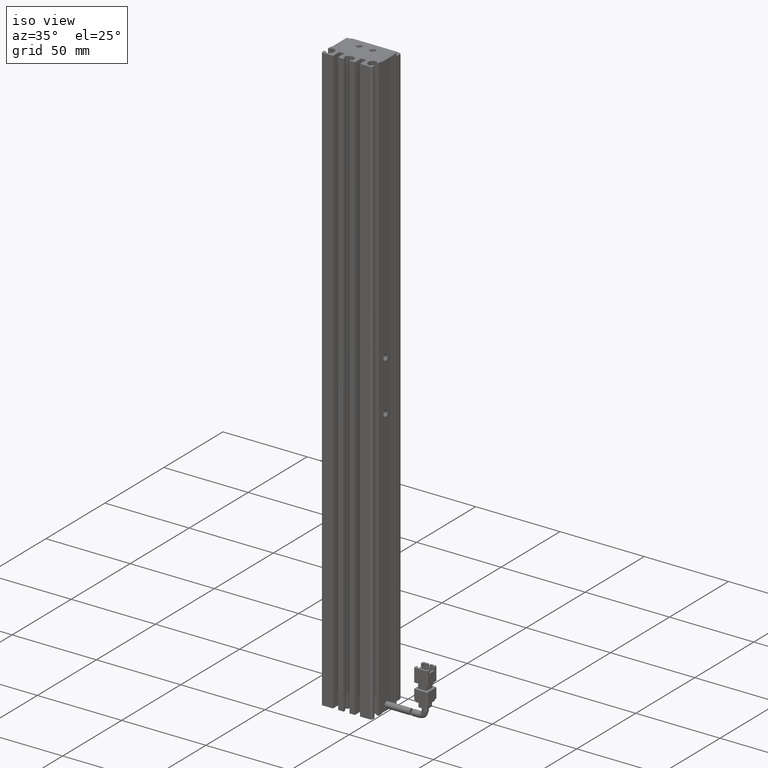
[diagram: clean part render]
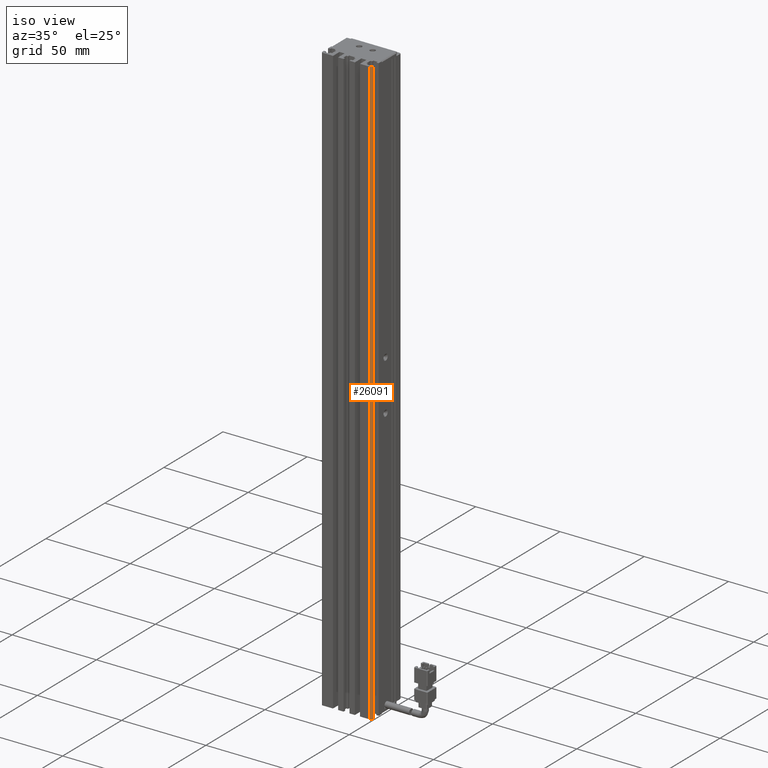
[diagram: same view with one face highlighted and labeled with its STEP entity id]
A machine part, iso view. The second image highlights one B-rep face of the part: STEP entity #26091.
In plain terms, the highlighted cylindrical surface (edge-blend (fillet) strip) has radius 1 mm, axis along (-0, -0, -1).
Its self-contained STEP definition (entity closure, byte-faithful):
#1012 = ORIENTED_EDGE ( 'NONE', *, *, #10043, .T. ) ;
#1917 = VERTEX_POINT ( 'NONE', #10433 ) ;
#2340 = CARTESIAN_POINT ( 'NONE',  ( 55.92537974683542500, 11.69594479660387000, 60.00000000000001400 ) ) ;
#3367 = FACE_OUTER_BOUND ( 'NONE', #54551, .T. ) ;
#4574 = EDGE_CURVE ( 'NONE', #54332, #21584, #12504, .T. ) ;
#4917 = EDGE_CURVE ( 'NONE', #1917, #54332, #17280, .T. ) ;
#10043 = EDGE_CURVE ( 'NONE', #21584, #58967, #54235, .T. ) ;
#10433 = CARTESIAN_POINT ( 'NONE',  ( 55.92537974683542500, 11.69594479660387000, 60.00000000000001400 ) ) ;
#12504 = LINE ( 'NONE', #48649, #40263 ) ;
#13125 = DIRECTION ( 'NONE',  ( 0.0000000000000000000, 0.0000000000000000000, 1.000000000000000000 ) ) ;
#15393 = AXIS2_PLACEMENT_3D ( 'NONE', #52786, #21573, #57983 ) ;
#17280 = CIRCLE ( 'NONE', #24931, 1.000000000000000900 ) ;
#17486 = DIRECTION ( 'NONE',  ( -0.0000000000000000000, -0.0000000000000000000, -1.000000000000000000 ) ) ;
#19949 = ORIENTED_EDGE ( 'NONE', *, *, #4917, .T. ) ;
#21067 = ORIENTED_EDGE ( 'NONE', *, *, #4574, .T. ) ;
#21573 = DIRECTION ( 'NONE',  ( 0.0000000000000000000, 0.0000000000000000000, 1.000000000000000000 ) ) ;
#21584 = VERTEX_POINT ( 'NONE', #51230 ) ;
#21604 = CARTESIAN_POINT ( 'NONE',  ( 55.92537974683542500, 11.69594479660387000, -290.0000000000000600 ) ) ;
#21908 = AXIS2_PLACEMENT_3D ( 'NONE', #41603, #26097, #47030 ) ;
#22951 = CYLINDRICAL_SURFACE ( 'NONE', #21908, 1.000000000000000900 ) ;
#24235 = DIRECTION ( 'NONE',  ( -0.0000000000000000000, -0.0000000000000000000, -1.000000000000000000 ) ) ;
#24931 = AXIS2_PLACEMENT_3D ( 'NONE', #55380, #24235, #60620 ) ;
#26091 = ADVANCED_FACE ( 'NONE', ( #3367 ), #22951, .T. ) ;
#26097 = DIRECTION ( 'NONE',  ( -0.0000000000000000000, -0.0000000000000000000, -1.000000000000000000 ) ) ;
#36627 = LINE ( 'NONE', #2340, #62675 ) ;
#40263 = VECTOR ( 'NONE', #17486, 1000.000000000000000 ) ;
#41603 = CARTESIAN_POINT ( 'NONE',  ( 54.92537974683542500, 11.69594479660387000, 60.00000000000001400 ) ) ;
#47030 = DIRECTION ( 'NONE',  ( -1.000000000000000000, 0.0000000000000000000, 0.0000000000000000000 ) ) ;
#48649 = CARTESIAN_POINT ( 'NONE',  ( 54.92537974683542500, 10.69594479660386800, 60.00000000000001400 ) ) ;
#51145 = CARTESIAN_POINT ( 'NONE',  ( 54.92537974683542500, 10.69594479660386800, 60.00000000000001400 ) ) ;
#51230 = CARTESIAN_POINT ( 'NONE',  ( 54.92537974683542500, 10.69594479660386800, -290.0000000000000600 ) ) ;
#52786 = CARTESIAN_POINT ( 'NONE',  ( 54.92537974683542500, 11.69594479660387000, -290.0000000000000600 ) ) ;
#54235 = CIRCLE ( 'NONE', #15393, 1.000000000000000900 ) ;
#54332 = VERTEX_POINT ( 'NONE', #51145 ) ;
#54551 = EDGE_LOOP ( 'NONE', ( #19949, #21067, #1012, #66702 ) ) ;
#55380 = CARTESIAN_POINT ( 'NONE',  ( 54.92537974683542500, 11.69594479660387000, 60.00000000000001400 ) ) ;
#57983 = DIRECTION ( 'NONE',  ( -1.000000000000000000, 0.0000000000000000000, 0.0000000000000000000 ) ) ;
#58967 = VERTEX_POINT ( 'NONE', #21604 ) ;
#60620 = DIRECTION ( 'NONE',  ( -1.000000000000000000, 0.0000000000000000000, 0.0000000000000000000 ) ) ;
#62675 = VECTOR ( 'NONE', #13125, 1000.000000000000000 ) ;
#66450 = EDGE_CURVE ( 'NONE', #58967, #1917, #36627, .T. ) ;
#66702 = ORIENTED_EDGE ( 'NONE', *, *, #66450, .T. ) ;